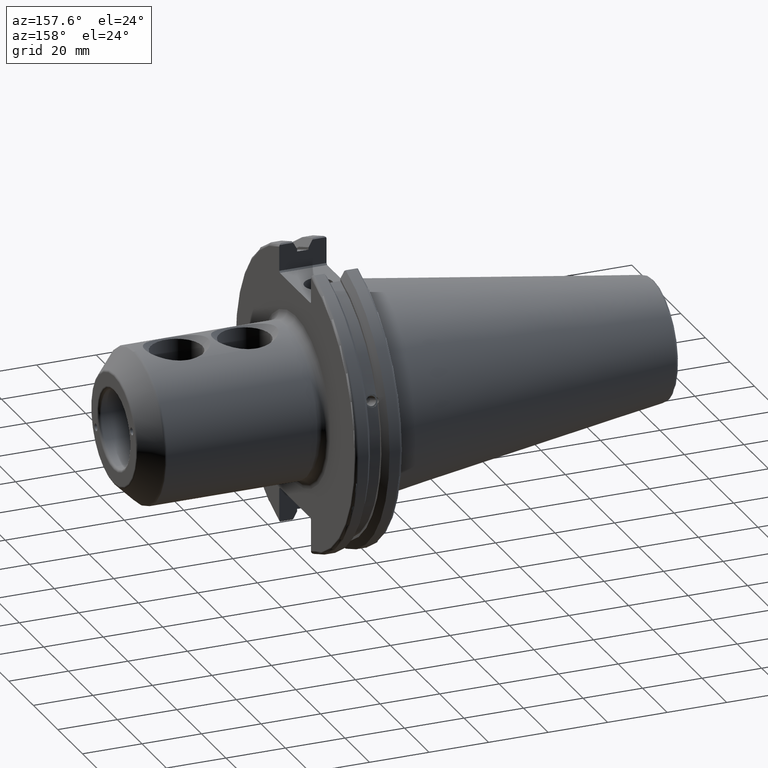
[diagram: clean part render]
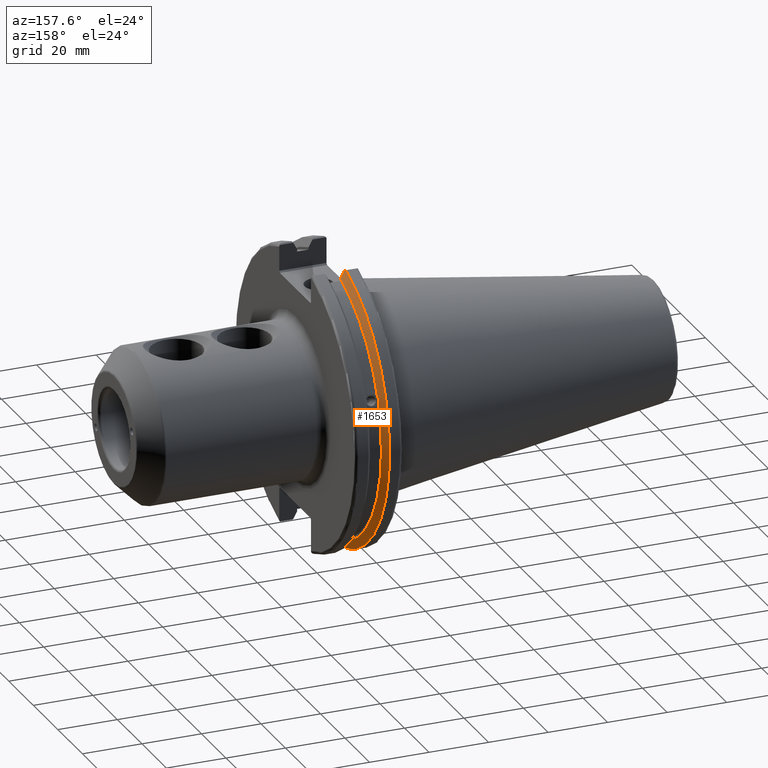
[diagram: same view with one face highlighted and labeled with its STEP entity id]
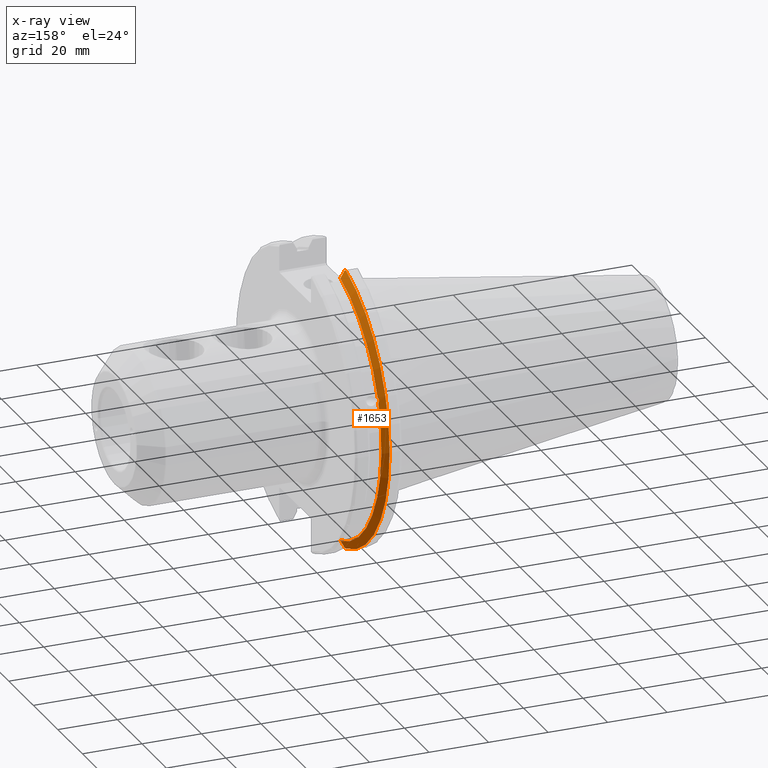
[diagram: x-ray of the same camera — body ghosted, the highlighted face saturated]
A machine part, auxiliary view. The second image highlights one B-rep face of the part: STEP entity #1653.
The next image is the same camera in x-ray: the body ghosted, the highlighted face saturated — about 0% of this face is hidden behind the body in this view.
In plain terms, the highlighted conical surface has half-angle 60 deg.
Its self-contained STEP definition (entity closure, byte-faithful):
#23=(
BOUNDED_CURVE()
B_SPLINE_CURVE(2,(#3271,#3272,#3273),.UNSPECIFIED.,.F.,.F.)
B_SPLINE_CURVE_WITH_KNOTS((3,3),(0.,0.275823910674931),.UNSPECIFIED.)
CURVE()
GEOMETRIC_REPRESENTATION_ITEM()
RATIONAL_B_SPLINE_CURVE((1.,1.00038235574495,1.0001287363679))
REPRESENTATION_ITEM('')
);
#28=(
BOUNDED_CURVE()
B_SPLINE_CURVE(2,(#3413,#3414,#3415),.UNSPECIFIED.,.F.,.F.)
B_SPLINE_CURVE_WITH_KNOTS((3,3),(0.,0.064824047289788),.UNSPECIFIED.)
CURVE()
GEOMETRIC_REPRESENTATION_ITEM()
RATIONAL_B_SPLINE_CURVE((1.,1.00011477674855,1.00019140645979))
REPRESENTATION_ITEM('')
);
#29=(
BOUNDED_CURVE()
B_SPLINE_CURVE(2,(#3444,#3445,#3446),.UNSPECIFIED.,.F.,.F.)
B_SPLINE_CURVE_WITH_KNOTS((3,3),(0.0558332664474718,0.331657177124507),
 .UNSPECIFIED.)
CURVE()
GEOMETRIC_REPRESENTATION_ITEM()
RATIONAL_B_SPLINE_CURVE((1.00012873637085,1.00038235575372,1.))
REPRESENTATION_ITEM('')
);
#30=(
BOUNDED_CURVE()
B_SPLINE_CURVE(2,(#3461,#3462,#3463),.UNSPECIFIED.,.F.,.F.)
B_SPLINE_CURVE_WITH_KNOTS((3,3),(0.325260944932384,0.390084992222206),
 .UNSPECIFIED.)
CURVE()
GEOMETRIC_REPRESENTATION_ITEM()
RATIONAL_B_SPLINE_CURVE((1.00019140645948,1.00011477674836,1.))
REPRESENTATION_ITEM('')
);
#50=CONICAL_SURFACE('',#1841,47.8172386482472,1.0471975511966);
#168=CIRCLE('',#1778,46.4219772964944);
#190=CIRCLE('',#1832,49.2125);
#193=CIRCLE('',#1842,46.4219772964944);
#279=FACE_OUTER_BOUND('',#398,.T.);
#398=EDGE_LOOP('',(#1487,#1488,#1489,#1490,#1491,#1492,#1493,#1494));
#444=B_SPLINE_CURVE_WITH_KNOTS('',3,(#3092,#3093,#3094,#3095,#3096,#3097,
#3098,#3099,#3100,#3101,#3102,#3103,#3104,#3105),.UNSPECIFIED.,.F.,.F.,
(4,2,2,2,2,2,4),(0.426712868358721,0.441644498666905,0.480313313223129,
0.518982127779352,0.557650942335576,0.596319756891799,0.611251387199981),
 .UNSPECIFIED.);
#745=VERTEX_POINT('',#3089);
#746=VERTEX_POINT('',#3091);
#758=VERTEX_POINT('',#3166);
#785=VERTEX_POINT('',#3268);
#786=VERTEX_POINT('',#3270);
#807=VERTEX_POINT('',#3411);
#813=VERTEX_POINT('',#3443);
#814=VERTEX_POINT('',#3453);
#937=EDGE_CURVE('',#746,#745,#444,.T.);
#953=EDGE_CURVE('',#746,#758,#168,.T.);
#990=EDGE_CURVE('',#786,#785,#23,.T.);
#1025=EDGE_CURVE('',#807,#785,#28,.T.);
#1039=EDGE_CURVE('',#813,#758,#29,.T.);
#1044=EDGE_CURVE('',#807,#814,#190,.T.);
#1046=EDGE_CURVE('',#813,#814,#30,.T.);
#1051=EDGE_CURVE('',#786,#745,#193,.T.);
#1487=ORIENTED_EDGE('',*,*,#937,.T.);
#1488=ORIENTED_EDGE('',*,*,#1051,.F.);
#1489=ORIENTED_EDGE('',*,*,#990,.T.);
#1490=ORIENTED_EDGE('',*,*,#1025,.F.);
#1491=ORIENTED_EDGE('',*,*,#1044,.T.);
#1492=ORIENTED_EDGE('',*,*,#1046,.F.);
#1493=ORIENTED_EDGE('',*,*,#1039,.T.);
#1494=ORIENTED_EDGE('',*,*,#953,.F.);
#1653=ADVANCED_FACE('',(#279),#50,.T.);
#1778=AXIS2_PLACEMENT_3D('',#3167,#2085,#2086);
#1832=AXIS2_PLACEMENT_3D('',#3455,#2238,#2239);
#1841=AXIS2_PLACEMENT_3D('',#3473,#2259,#2260);
#1842=AXIS2_PLACEMENT_3D('',#3474,#2261,#2262);
#2085=DIRECTION('center_axis',(1.,0.,0.));
#2086=DIRECTION('ref_axis',(0.,0.,-1.));
#2238=DIRECTION('center_axis',(1.,0.,0.));
#2239=DIRECTION('ref_axis',(0.,0.,-1.));
#2259=DIRECTION('center_axis',(-1.,0.,0.));
#2260=DIRECTION('ref_axis',(0.,1.,0.));
#2261=DIRECTION('center_axis',(1.,0.,0.));
#2262=DIRECTION('ref_axis',(0.,0.,-1.));
#3089=CARTESIAN_POINT('',(9.21200000000001,43.9096390749305,15.0646464421033));
#3091=CARTESIAN_POINT('',(9.21200000000001,43.3201030900029,16.6843832486479));
#3092=CARTESIAN_POINT('Ctrl Pts',(9.212,43.3201030900029,16.6843832486479));
#3093=CARTESIAN_POINT('Ctrl Pts',(9.19501843903392,43.3613106941341,16.6592273018006));
#3094=CARTESIAN_POINT('Ctrl Pts',(9.17898675403323,43.4012416983557,16.6326763251437));
#3095=CARTESIAN_POINT('Ctrl Pts',(9.12528673845038,43.539103734322,16.5325130832406));
#3096=CARTESIAN_POINT('Ctrl Pts',(9.08911610663556,43.6406982153491,16.441180795372));
#3097=CARTESIAN_POINT('Ctrl Pts',(9.03980868251976,43.8110833825827,16.2291323464527));
#3098=CARTESIAN_POINT('Ctrl Pts',(9.027,43.8794096049168,16.10796730316));
#3099=CARTESIAN_POINT('Ctrl Pts',(9.027,43.9675796948952,15.8657219718732));
#3100=CARTESIAN_POINT('Ctrl Pts',(9.03980868251976,43.9931221605125,15.7289849146254));
#3101=CARTESIAN_POINT('Ctrl Pts',(9.08911610663556,43.9989016655819,15.4570249042867));
#3102=CARTESIAN_POINT('Ctrl Pts',(9.12528673845038,43.9797830409458,15.3217566390708));
#3103=CARTESIAN_POINT('Ctrl Pts',(9.17898675403322,43.9385582852181,15.1564111356409));
#3104=CARTESIAN_POINT('Ctrl Pts',(9.19501843903391,43.9250360001461,15.1104047527575));
#3105=CARTESIAN_POINT('Ctrl Pts',(9.21199999999999,43.9096390749305,15.0646464421033));
#3166=CARTESIAN_POINT('',(9.21200000000001,12.95,44.5791147973604));
#3167=CARTESIAN_POINT('Origin',(9.21200000000001,0.,0.));
#3268=CARTESIAN_POINT('',(7.87928960562424,12.95,-46.9780755322918));
#3270=CARTESIAN_POINT('',(9.21200000000001,12.95,-44.5791147973604));
#3271=CARTESIAN_POINT('Ctrl Pts',(9.21200000000001,12.95,-44.5791147973604));
#3272=CARTESIAN_POINT('Ctrl Pts',(8.5631044905565,12.95,-45.7494966802185));
#3273=CARTESIAN_POINT('Ctrl Pts',(7.87928960562424,12.95,-46.9780755322917));
#3411=CARTESIAN_POINT('',(7.60089096595127,13.4317035994433,-47.3440544806494));
#3413=CARTESIAN_POINT('Ctrl Pts',(7.60089096595127,13.4317035994433,-47.3440544806494));
#3414=CARTESIAN_POINT('Ctrl Pts',(7.74116896663821,13.1896660169966,-47.1601640966264));
#3415=CARTESIAN_POINT('Ctrl Pts',(7.87928960562424,12.95,-46.9780755322918));
#3443=CARTESIAN_POINT('',(7.87928960562422,12.95,46.9780755322917));
#3444=CARTESIAN_POINT('Ctrl Pts',(7.87928960562422,12.95,46.9780755322917));
#3445=CARTESIAN_POINT('Ctrl Pts',(8.5631044905765,12.95,45.7494966801825));
#3446=CARTESIAN_POINT('Ctrl Pts',(9.21200000000001,12.95,44.5791147973604));
#3453=CARTESIAN_POINT('',(7.60089096595127,13.4317035994433,47.3440544806494));
#3455=CARTESIAN_POINT('Origin',(7.60089096595127,0.,0.));
#3461=CARTESIAN_POINT('Ctrl Pts',(7.87928960562422,12.95,46.9780755322917));
#3462=CARTESIAN_POINT('Ctrl Pts',(7.74116896663815,13.1896660169967,47.1601640966265));
#3463=CARTESIAN_POINT('Ctrl Pts',(7.60089096595127,13.4317035994433,47.3440544806494));
#3473=CARTESIAN_POINT('Origin',(8.40644548297563,0.,0.));
#3474=CARTESIAN_POINT('Origin',(9.21200000000001,0.,0.));